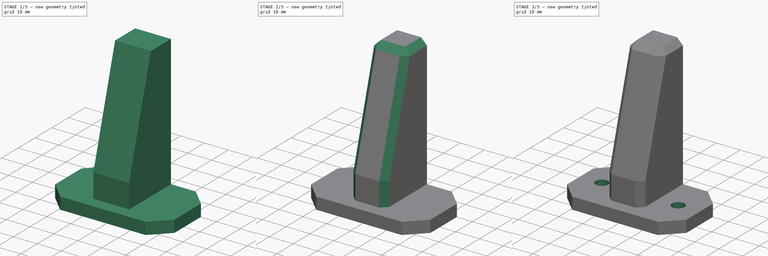
[diagram: build sequence overview — one tinted view per stage of 3, left to right]
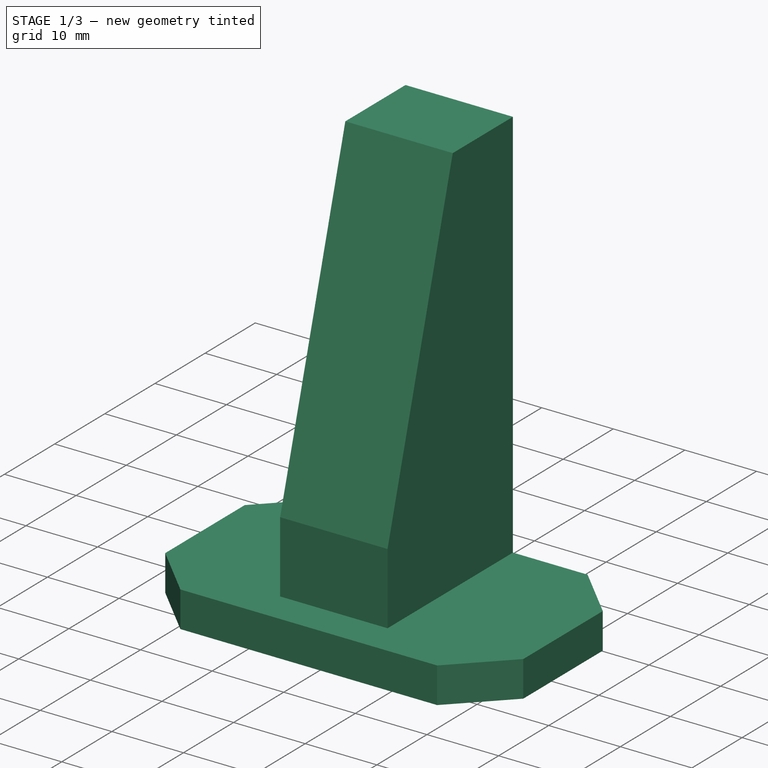
[diagram: stage 1 of 3 — iso view after this stage's code; geometry added in this stage tinted green]
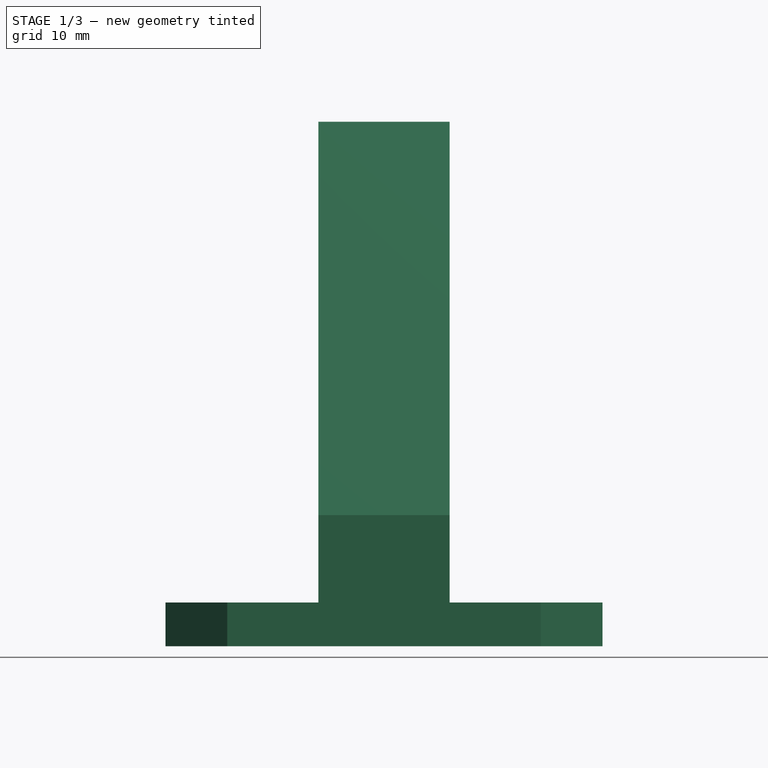
[diagram: stage 1 of 3 — front view after this stage's code; geometry added in this stage tinted green]
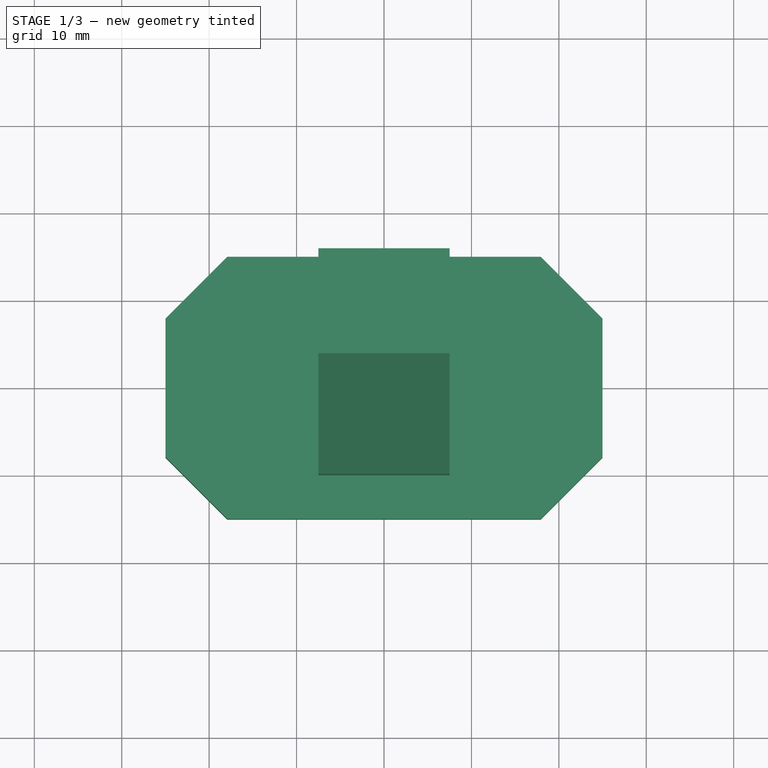
[diagram: stage 1 of 3 — top view after this stage's code; geometry added in this stage tinted green]
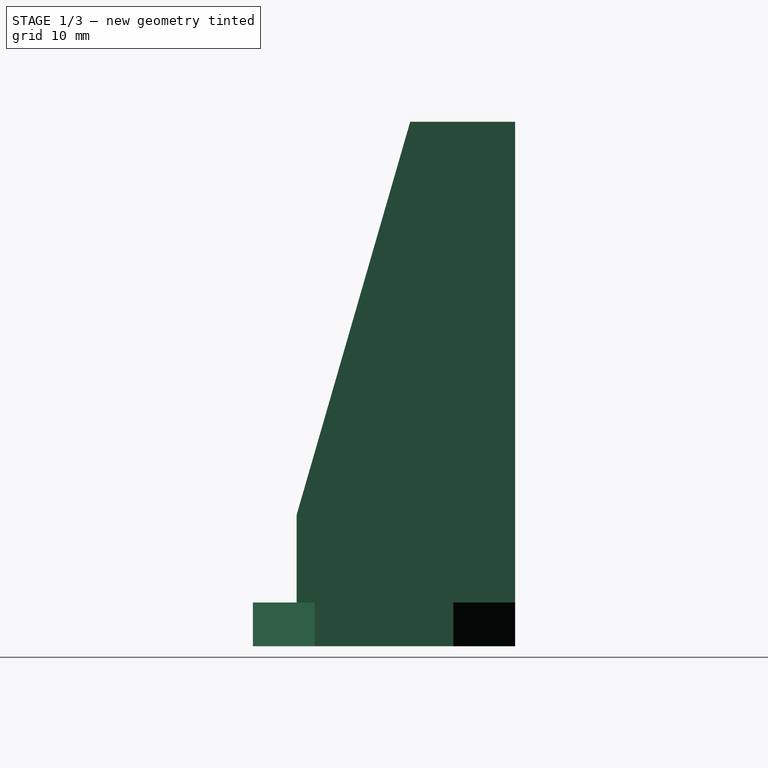
[diagram: stage 1 of 3 — right view after this stage's code; geometry added in this stage tinted green]
FCSTD DOCUMENT  (FreeCAD 1.0R39285 (Git))
Label: din_mount
License: All rights reserved
objects: Sketcher::SketchObject×4, PartDesign::Pad×2, PartDesign::Pocket×2, PartDesign::Chamfer×1, PartDesign::Body×1, App::Part×1
note: 24 computed .brp shape members not serialized (recipe doc carries the construction recipe); baked Part::Feature solids carry a one-line shape summary decoded from their .brp

FEATURE [Sketcher::SketchObject] Sketch
  ArcFitTolerance = 1e-06
  AttachmentSupport = -> [XY_Plane]
  FullyConstrained = true
  MakeInternals = false
  MapMode = 5
  expr: Constraints[33] = 10
  sketch-geometry (17):
    g0: LineSegment StartX=-17.9289 StartY=-15 StartZ=0 EndX=17.9289 EndY=-15 EndZ=0
    g1: LineSegment StartX=25 StartY=-7.92893 StartZ=0 EndX=25 EndY=7.92893 EndZ=0
    g2: LineSegment StartX=17.9289 StartY=15 StartZ=0 EndX=-17.9289 EndY=15 EndZ=0
    g3: LineSegment StartX=-25 StartY=7.92893 StartZ=0 EndX=-25 EndY=-7.92893 EndZ=0
    g4: GeomPoint [constr] X=0 Y=0 Z=0
    g5: ArcOfCircle [constr] CenterX=-17.9289 CenterY=7.92893 CenterZ=0 NormalX=0 NormalY=0 NormalZ=1 AngleXU=0 Radius=7.07107 StartAngle=1.5708 EndAngle=3.14159
    g6: GeomPoint [constr] X=-25 Y=15 Z=0
    g7: LineSegment StartX=-17.9289 StartY=15 StartZ=0 EndX=-25 EndY=7.92893 EndZ=0
    g8: ArcOfCircle [constr] CenterX=17.9289 CenterY=7.92893 CenterZ=0 NormalX=0 NormalY=0 NormalZ=1 AngleXU=0 Radius=7.07107 StartAngle=1e-16 EndAngle=1.5708
    g9: GeomPoint [constr] X=25 Y=15 Z=0
    g10: LineSegment StartX=25 StartY=7.92893 StartZ=0 EndX=17.9289 EndY=15 EndZ=0
    g11: ArcOfCircle [constr] CenterX=17.9289 CenterY=-7.92893 CenterZ=0 NormalX=0 NormalY=0 NormalZ=1 AngleXU=0 Radius=7.07107 StartAngle=4.71239 EndAngle=6.28319
    g12: GeomPoint [constr] X=25 Y=-15 Z=0
    g13: LineSegment StartX=17.9289 StartY=-15 StartZ=0 EndX=25 EndY=-7.92893 EndZ=0
    g14: ArcOfCircle [constr] CenterX=-17.9289 CenterY=-7.92893 CenterZ=0 NormalX=0 NormalY=0 NormalZ=1 AngleXU=0 Radius=7.07107 StartAngle=3.14159 EndAngle=4.71239
    g15: GeomPoint [constr] X=-25 Y=-15 Z=0
    g16: LineSegment StartX=-25 StartY=-7.92893 StartZ=0 EndX=-17.9289 EndY=-15 EndZ=0
  constraints (36):
    c: Horizontal(g0)
    c: Horizontal(g2)
    c: Vertical(g1)
    c: Vertical(g3)
    c: Symmetric(g9,g15,g4)
    c: Distance(g12,g15) = 50
    c: Distance(g15,g6) = 30
    c: Coincident(g4,g-1)
    c: PointOnObject(g6,g2)
    c: PointOnObject(g6,g3)
    c: Tangent(g2,g5) = -1.5708
    c: Tangent(g3,g5) = -1.5708
    c: Coincident(g7,g2)
    c: Coincident(g7,g3)
    c: PointOnObject(g9,g2)
    c: PointOnObject(g9,g1)
    c: Tangent(g2,g8) = -1.5708
    c: Tangent(g1,g8) = -1.5708
    c: Coincident(g10,g2)
    c: Coincident(g10,g1)
    c: PointOnObject(g12,g0)
    c: PointOnObject(g12,g1)
    c: Tangent(g0,g11) = -1.5708
    c: Tangent(g1,g11) = -1.5708
    c: Coincident(g13,g0)
    c: Coincident(g13,g1)
    c: PointOnObject(g15,g3)
    c: PointOnObject(g15,g0)
    c: Tangent(g3,g14) = -1.5708
    c: Tangent(g0,g14) = -1.5708
    c: Coincident(g16,g3)
    c: Coincident(g16,g0)
    c: Distance(g7,g7) = 10
    c: Distance(g10,g10) = 10
    c: Distance(g13,g13) = 10
    c: Distance(g16,g16) = 10
FEATURE [PartDesign::Pad] Pad
  Direction = (0,0,1)
  Length = 5
  Length2 = 10
  Profile = -> Sketch
  ReferenceAxis = -> Sketch [N_Axis]
  Refine = true
  Suppressed = false
  Type = 0
FEATURE [Sketcher::SketchObject] Sketch001
  ArcFitTolerance = 1e-06
  AttachmentSupport = -> [YZ_Plane]
  FullyConstrained = true
  MakeInternals = false
  MapMode = 5
  Placement = pos=(0,0,0) rot=(0.57735,0.57735,0.57735;2.0944rad)
  sketch-geometry (6):
    g0: LineSegment StartX=0 StartY=0 StartZ=0 EndX=-10 EndY=0 EndZ=0
    g1: LineSegment StartX=-10 StartY=0 StartZ=0 EndX=-10 EndY=15 EndZ=0
    g2: LineSegment StartX=0 StartY=0 StartZ=0 EndX=15 EndY=0 EndZ=0
    g3: LineSegment StartX=15 StartY=0 StartZ=0 EndX=15 EndY=60 EndZ=0
    g4: LineSegment StartX=15 StartY=60 StartZ=0 EndX=3 EndY=60 EndZ=0
    g5: LineSegment StartX=3 StartY=60 StartZ=0 EndX=-10 EndY=15 EndZ=0
  constraints (17):
    c: Distance(g0) = 10
    c: Coincident(g0,g-1)
    c: PointOnObject(g0,g-1)
    c: Distance(g1) = 15
    c: Coincident(g1,g0)
    c: Vertical(g1)
    c: Distance(g2) = 15
    c: Coincident(g2,g0)
    c: PointOnObject(g2,g-1)
    c: Distance(g3) = 60
    c: Coincident(g3,g2)
    c: Vertical(g3)
    c: Distance(g4) = 12
    c: Coincident(g4,g3)
    c: Horizontal(g4)
    c: Coincident(g5,g4)
    c: Coincident(g5,g1)
FEATURE [PartDesign::Pad] Pad001
  BaseFeature = -> Pad
  Direction = (1,0,0)
  Length = 15
  Length2 = 10
  Midplane = true
  Profile = -> Sketch001
  ReferenceAxis = -> Sketch001 [N_Axis]
  Refine = true
  Suppressed = false
  Type = 0
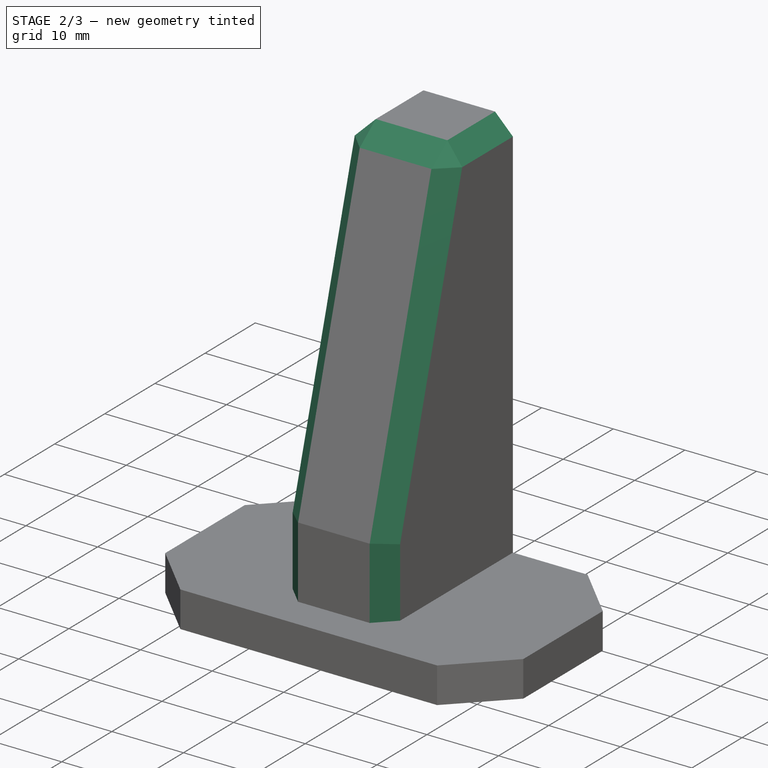
[diagram: stage 2 of 3 — iso view after this stage's code; geometry added in this stage tinted green]
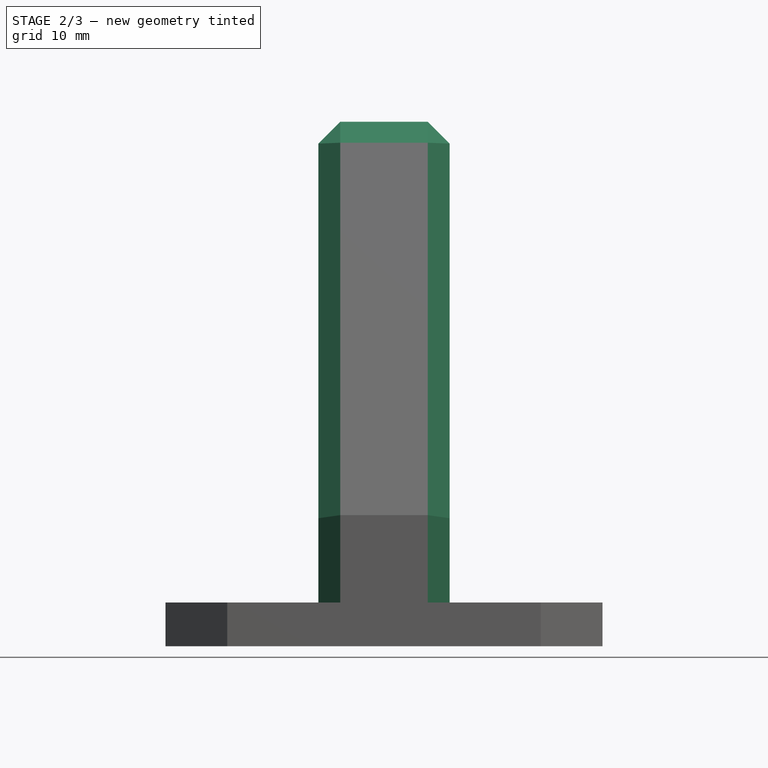
[diagram: stage 2 of 3 — front view after this stage's code; geometry added in this stage tinted green]
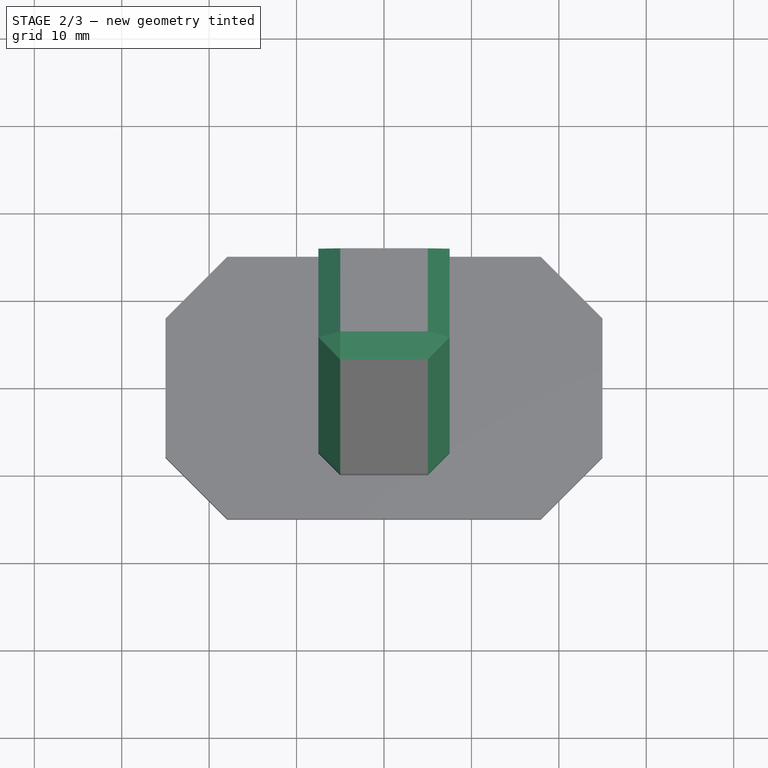
[diagram: stage 2 of 3 — top view after this stage's code; geometry added in this stage tinted green]
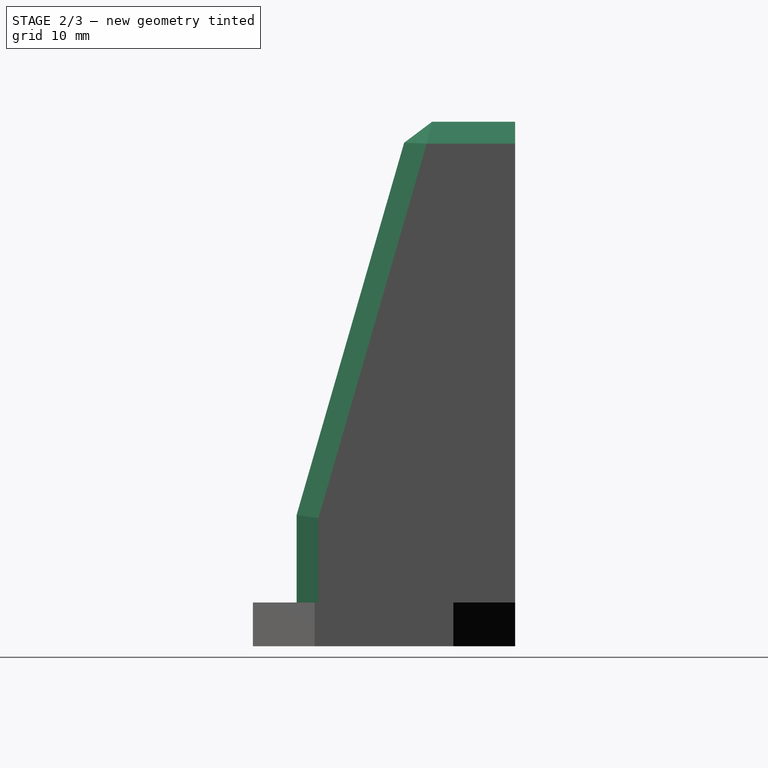
[diagram: stage 2 of 3 — right view after this stage's code; geometry added in this stage tinted green]
FEATURE [PartDesign::Chamfer] Chamfer
  Angle = 45
  Base = -> Pad001 [Edge37,Edge34,Edge29,Edge28,Edge33,Edge35,Edge30]
  BaseFeature = -> Pad001
  ChamferType = 0
  FlipDirection = false
  Refine = true
  Size = 2.5
  Size2 = 1
  SupportTransform = false
  Suppressed = false
  UseAllEdges = false
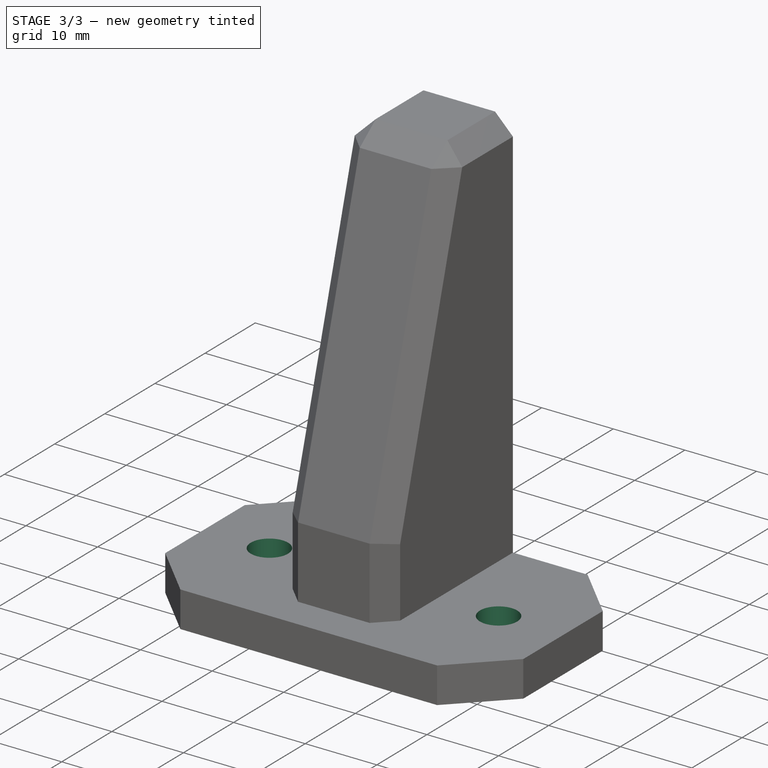
[diagram: stage 3 of 3 — iso view after this stage's code; geometry added in this stage tinted green]
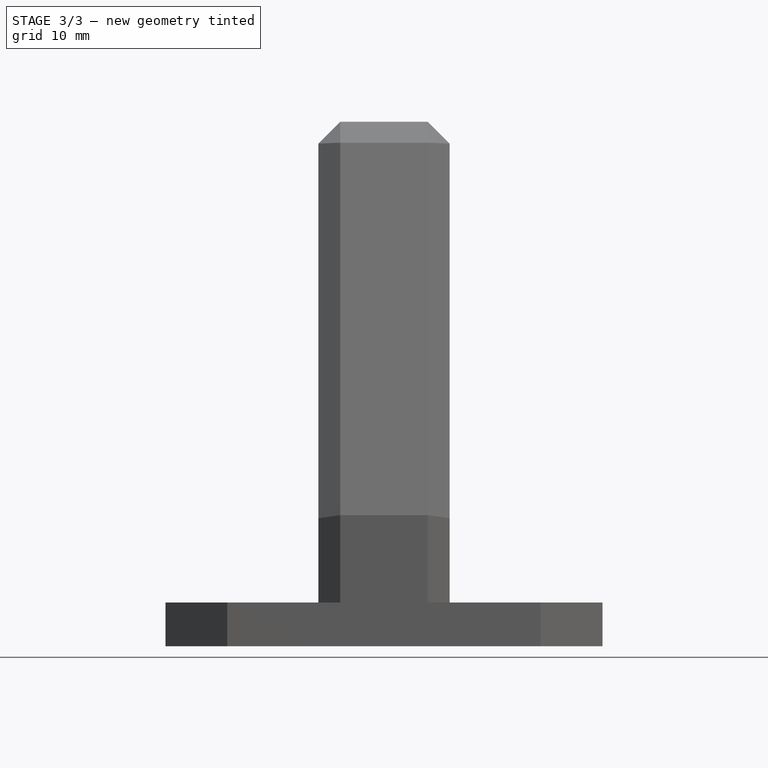
[diagram: stage 3 of 3 — front view after this stage's code; geometry added in this stage tinted green]
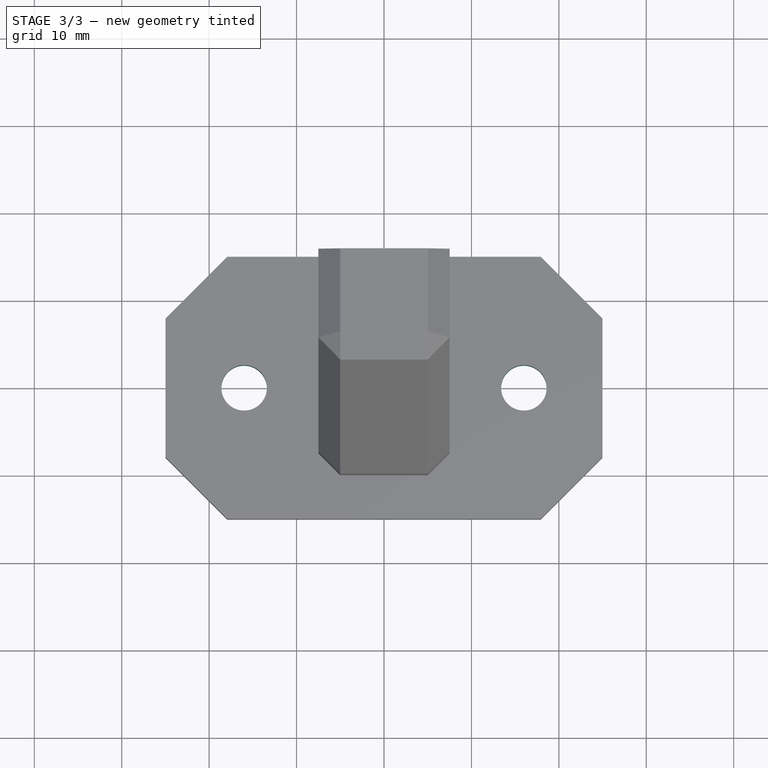
[diagram: stage 3 of 3 — top view after this stage's code; geometry added in this stage tinted green]
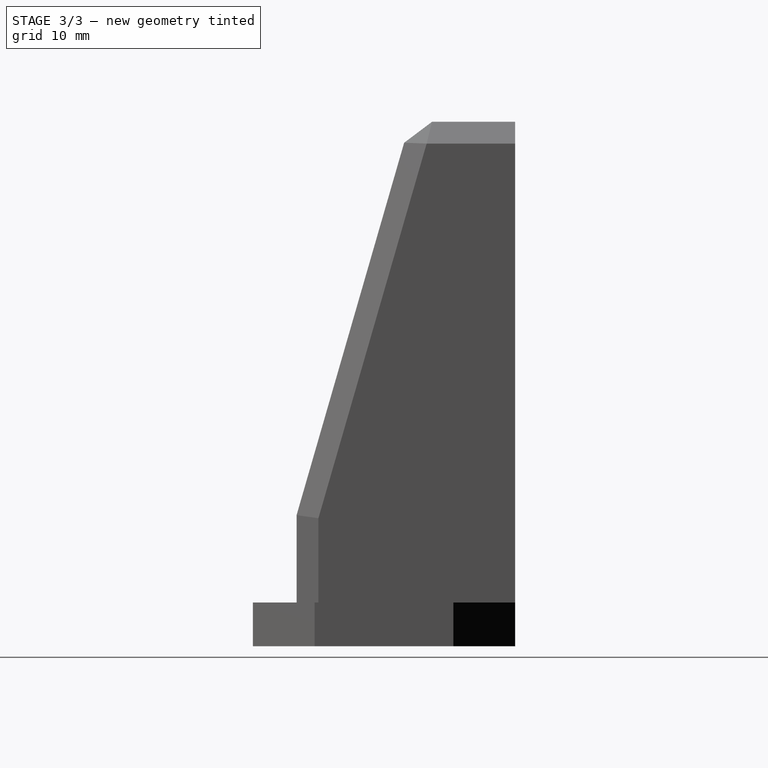
[diagram: stage 3 of 3 — right view after this stage's code; geometry added in this stage tinted green]
FEATURE [Sketcher::SketchObject] Sketch002
  ArcFitTolerance = 1e-06
  AttachmentSupport = -> [Chamfer]
  FullyConstrained = true
  MakeInternals = false
  MapMode = 5
  Placement = pos=(0,15,0) rot=(0,0.707107,0.707107;3.14159rad)
  sketch-geometry (2):
    g0: LineSegment [constr] StartX=0 StartY=0 StartZ=0 EndX=0 EndY=52.5 EndZ=0
    g1: Circle CenterX=0 CenterY=52.5 CenterZ=0 NormalX=0 NormalY=0 NormalZ=1 AngleXU=0 Radius=3.25
  constraints (5):
    c: Distance(g0) = 52.5
    c: Coincident(g0,g-1)
    c: Vertical(g0)
    c: Diameter(g1) = 6.5
    c: Coincident(g1,g0)
FEATURE [PartDesign::Pocket] Pocket
  BaseFeature = -> Chamfer
  Direction = (0,-1,2e-16)
  Length = 11
  Length2 = 5
  Profile = -> Sketch002
  ReferenceAxis = -> Sketch002 [N_Axis]
  Refine = true
  Suppressed = false
  Type = 0
FEATURE [Sketcher::SketchObject] Sketch003
  ArcFitTolerance = 1e-06
  AttachmentSupport = -> [Pocket]
  FullyConstrained = true
  MakeInternals = false
  MapMode = 5
  Placement = pos=(0,0,0) rot=(1,0,0;3.14159rad)
  sketch-geometry (4):
    g0: LineSegment [constr] StartX=0 StartY=0 StartZ=0 EndX=16 EndY=0 EndZ=0
    g1: LineSegment [constr] StartX=0 StartY=0 StartZ=0 EndX=-16 EndY=0 EndZ=0
    g2: Circle CenterX=-16 CenterY=0 CenterZ=0 NormalX=0 NormalY=0 NormalZ=1 AngleXU=0 Radius=2.6
    g3: Circle CenterX=16 CenterY=0 CenterZ=0 NormalX=0 NormalY=0 NormalZ=1 AngleXU=0 Radius=2.6
  constraints (10):
    c: Distance(g0) = 16
    c: Coincident(g0,g-1)
    c: PointOnObject(g0,g-1)
    c: Distance(g1) = 16
    c: Coincident(g1,g0)
    c: PointOnObject(g1,g-1)
    c: Diameter(g2) = 5.2
    c: Coincident(g2,g1)
    c: Diameter(g3) = 5.2
    c: Coincident(g3,g0)
FEATURE [PartDesign::Pocket] Pocket001
  BaseFeature = -> Pocket
  Direction = (0,0,1)
  Length = 5
  Length2 = 5
  Profile = -> Sketch003
  ReferenceAxis = -> Sketch003 [N_Axis]
  Refine = true
  Suppressed = false
  Type = 0
FEATURE [PartDesign::Body] Body  label="din_mount_body"
  AllowCompound = false
  Group = -> [Sketch,Pad,Sketch001,Pad001,Chamfer,Sketch002,Pocket,Sketch003,Pocket001]
  Origin = -> Origin
  Tip = -> Pocket001
FEATURE [App::Part] Part  label="din_mount_part"
  Group = -> [Body]
  Origin = -> Origin001
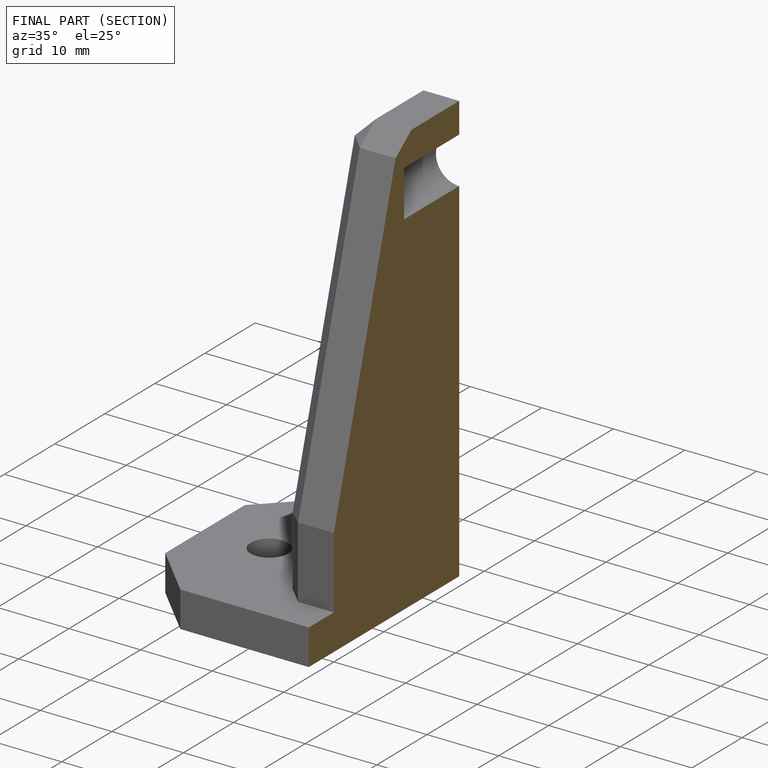
[diagram: finished part — half-section view (interior)]
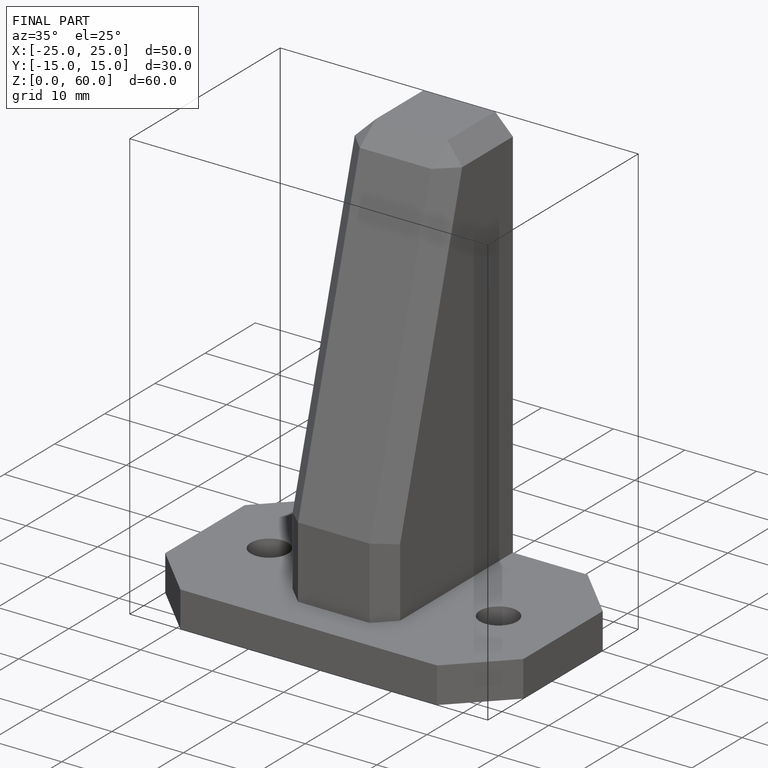
[diagram: finished part — iso view with bounding-box wireframe]
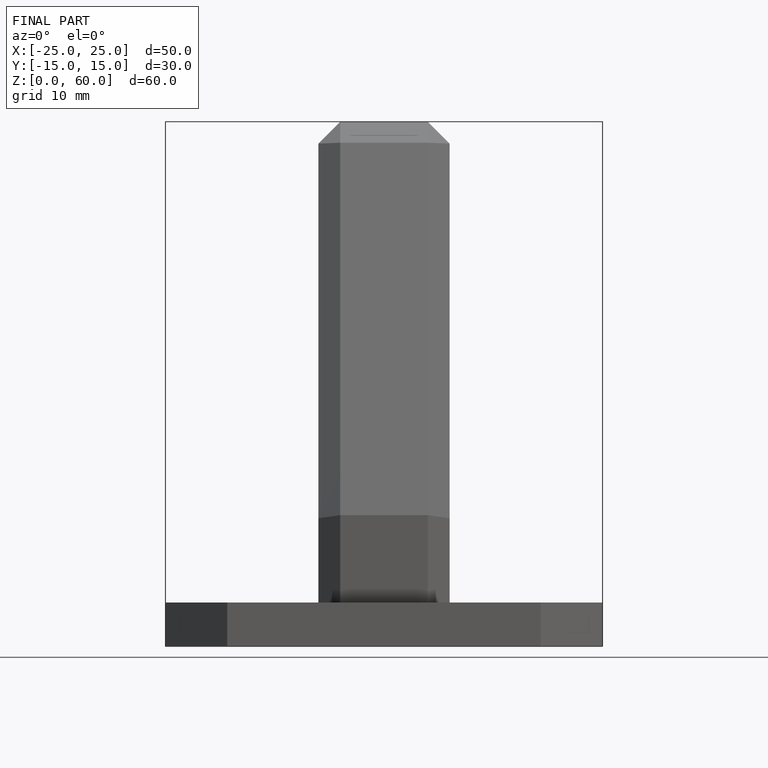
[diagram: finished part — front view with bounding-box wireframe]
